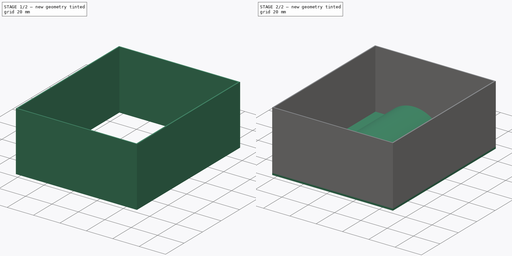
[diagram: build sequence overview — one tinted view per stage of 2, left to right]
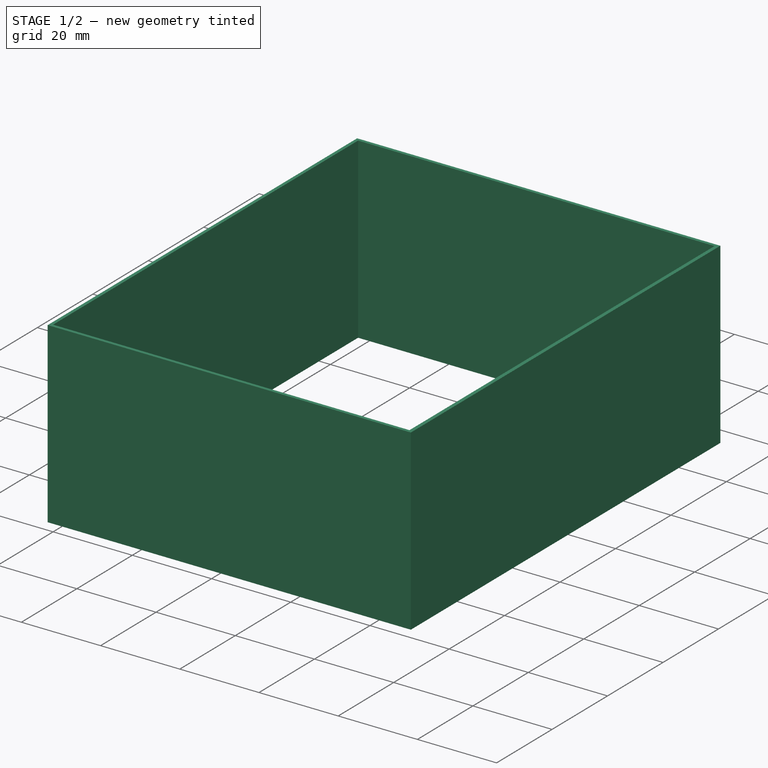
[diagram: stage 1 of 2 — iso view after this stage's code; geometry added in this stage tinted green]
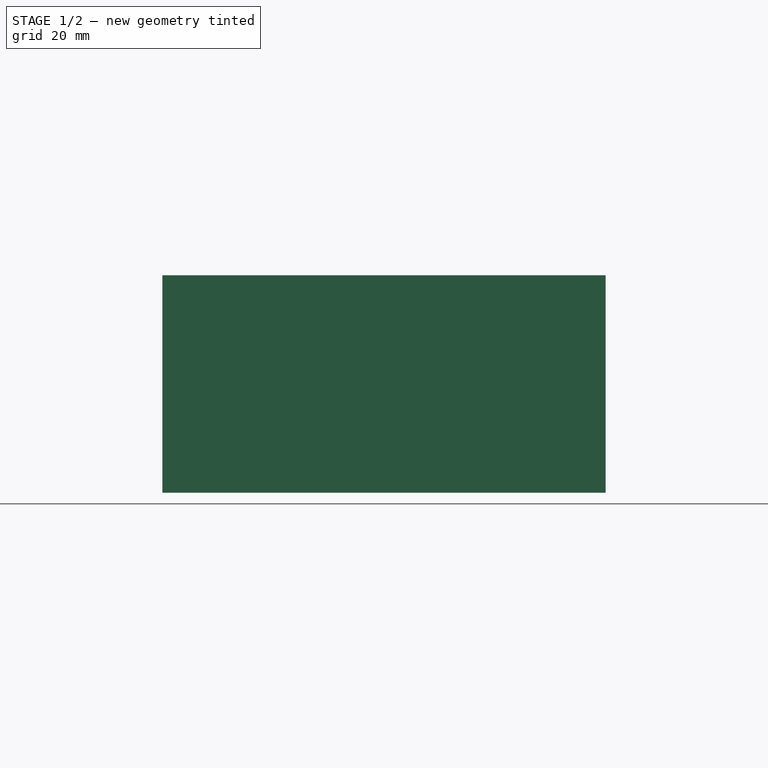
[diagram: stage 1 of 2 — front view after this stage's code; geometry added in this stage tinted green]
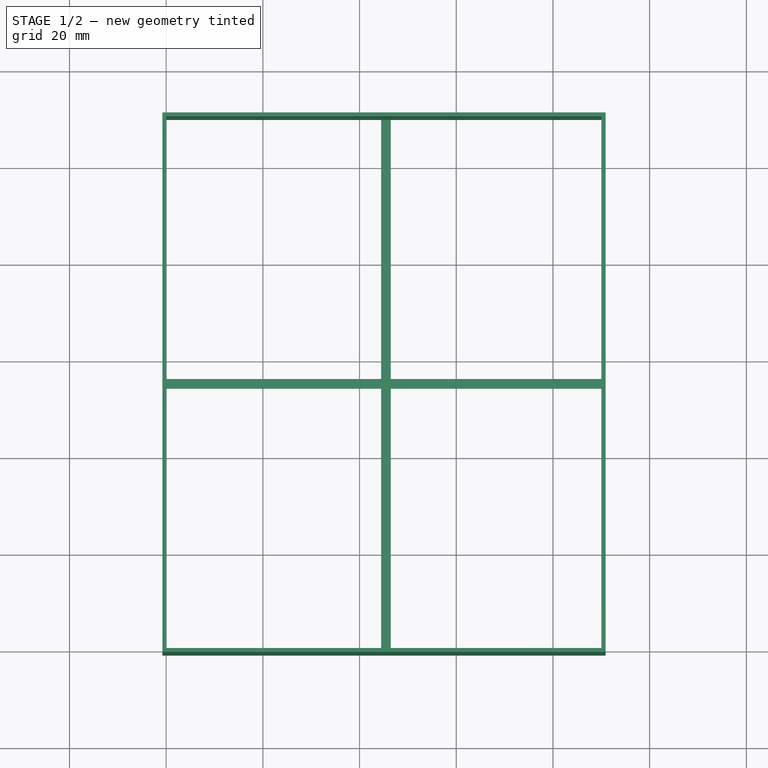
[diagram: stage 1 of 2 — top view after this stage's code; geometry added in this stage tinted green]
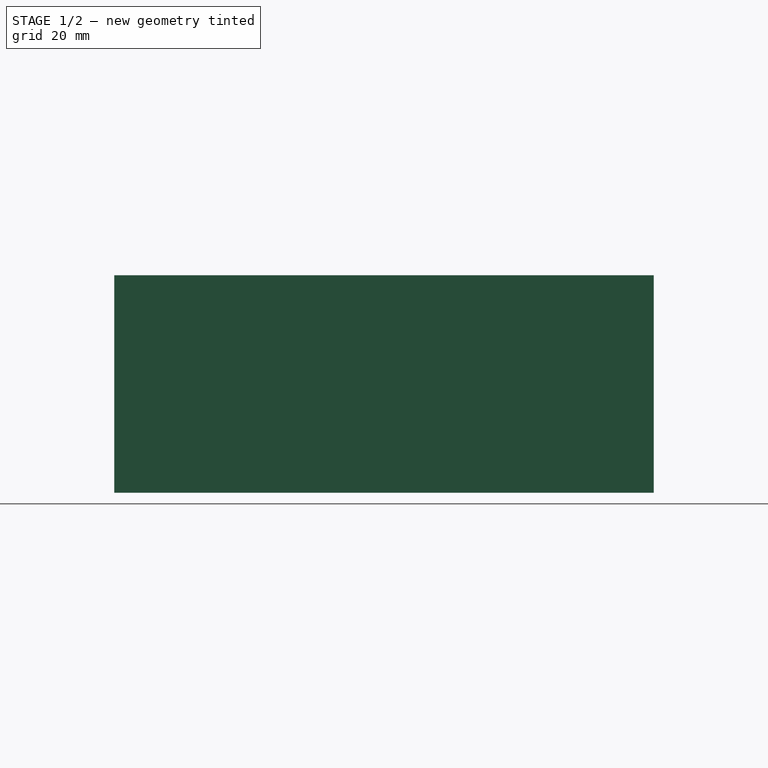
[diagram: stage 1 of 2 — right view after this stage's code; geometry added in this stage tinted green]
FCSTD DOCUMENT  (FreeCAD 0.22R38261 (Git))
Label: форма половинка
License: All rights reserved
LicenseURL: https://en.wikipedia.org/wiki/All_rights_reserved
objects: Sketcher::SketchObject×3, PartDesign::Pad×3, PartDesign::SubShapeBinder×1, PartDesign::Revolution×1, PartDesign::Body×1
note: 17 computed .brp shape members not serialized (recipe doc carries the construction recipe); baked Part::Feature solids carry a one-line shape summary decoded from their .brp

FEATURE [Sketcher::SketchObject] Sketch
  AttachmentSupport = -> [XY_Plane]
  FullyConstrained = true
  MapMode = 5
  sketch-geometry (8):
    g0: LineSegment StartX=0 StartY=110 StartZ=0 EndX=0 EndY=0 EndZ=0
    g1: LineSegment StartX=0 StartY=0 StartZ=0 EndX=90 EndY=0 EndZ=0
    g2: LineSegment StartX=90 StartY=0 StartZ=0 EndX=90 EndY=110 EndZ=0
    g3: LineSegment StartX=90 StartY=110 StartZ=0 EndX=0 EndY=110 EndZ=0
    g4: LineSegment StartX=-0.8 StartY=110.8 StartZ=0 EndX=-0.8 EndY=-0.8 EndZ=0
    g5: LineSegment StartX=-0.8 StartY=-0.8 StartZ=0 EndX=90.9 EndY=-0.8 EndZ=0
    g6: LineSegment StartX=90.9 StartY=-0.8 StartZ=0 EndX=90.9 EndY=110.8 EndZ=0
    g7: LineSegment StartX=90.9 StartY=110.8 StartZ=0 EndX=-0.8 EndY=110.8 EndZ=0
  constraints (23):
    c: Coincident(g0,g1)
    c: Coincident(g1,g2)
    c: Coincident(g2,g3)
    c: Coincident(g3,g0)
    c: Vertical(g0)
    c: Vertical(g2)
    c: Horizontal(g1)
    c: Horizontal(g3)
    c: DistanceX(g3,g3) = 90
    c: DistanceY(g0,g0) = 110
    c: Coincident(g0,g-1)
    c: Coincident(g4,g5)
    c: Coincident(g5,g6)
    c: Coincident(g6,g7)
    c: Coincident(g7,g4)
    c: Vertical(g4)
    c: Vertical(g6)
    c: Horizontal(g5)
    c: Horizontal(g7)
    c: DistanceX(g1,g5) = 0.9
    c: DistanceY(g5,g1) = 0.8
    c: DistanceX(g4,g0) = 0.8
    c: DistanceY(g0,g4) = 0.8
FEATURE [PartDesign::Pad] Pad
  Direction = (0,0,1)
  Length = 45
  Length2 = 10
  Profile = -> Sketch
  ReferenceAxis = -> Sketch [N_Axis]
  Suppressed = false
  Type = 0
FEATURE [Sketcher::SketchObject] Sketch001
  AttachmentSupport = -> [XY_Plane]
  ExternalGeometry = -> [Pad]
  FullyConstrained = false
  MapMode = 5
  sketch-geometry (6):
    g0: LineSegment StartX=45 StartY=87.5 StartZ=0 EndX=45 EndY=22.5 EndZ=0
    g1: LineSegment StartX=45 StartY=22.5 StartZ=0 EndX=69 EndY=22.5 EndZ=0
    g2: LineSegment StartX=69 StartY=22.5 StartZ=0 EndX=69 EndY=87.5 EndZ=0
    g3: LineSegment StartX=69 StartY=87.5 StartZ=0 EndX=45 EndY=87.5 EndZ=0
    g4: GeomPoint X=45 Y=55 Z=0
    g5: LineSegment StartX=45 StartY=122.08 StartZ=0 EndX=45 EndY=-38.8676 EndZ=0
  constraints (14):
    c: Coincident(g0,g1)
    c: Coincident(g1,g2)
    c: Coincident(g2,g3)
    c: Coincident(g3,g0)
    c: Vertical(g0)
    c: Vertical(g2)
    c: Horizontal(g1)
    c: Horizontal(g3)
    c: Symmetric(g-5,g-4,g4)
    c: Symmetric(g0,g0,g4)
    c: DistanceX(g1,g1) = 24
    c: DistanceY(g0,g0) = 65
    c: Vertical(g5)
    c: PointOnObject(g0,g5)
FEATURE [Sketcher::SketchObject] Sketch002
  AttachmentSupport = -> [XY_Plane]
  ExternalGeometry = -> [Pad]
  FullyConstrained = true
  MapMode = 5
  sketch-geometry (13):
    g0: LineSegment StartX=0 StartY=56.4 StartZ=0 EndX=0 EndY=54.4 EndZ=0
    g1: LineSegment StartX=0 StartY=54.4 StartZ=0 EndX=44.45 EndY=54.4 EndZ=0
    g2: LineSegment StartX=90.9 StartY=54.4 StartZ=0 EndX=90.9 EndY=56.4 EndZ=0
    g3: LineSegment StartX=90.9 StartY=56.4 StartZ=0 EndX=46.45 EndY=56.4 EndZ=0
    g4: LineSegment StartX=44.45 StartY=110.8 StartZ=0 EndX=44.45 EndY=56.4 EndZ=0
    g5: LineSegment StartX=44.45 StartY=0 StartZ=0 EndX=46.45 EndY=0 EndZ=0
    g6: LineSegment StartX=46.45 StartY=0 StartZ=0 EndX=46.45 EndY=54.4 EndZ=0
    g7: LineSegment StartX=46.45 StartY=110.8 StartZ=0 EndX=44.45 EndY=110.8 EndZ=0
    g8: GeomPoint X=45.45 Y=55.4 Z=0
    g9: LineSegment StartX=44.45 StartY=54.4 StartZ=0 EndX=44.45 EndY=0 EndZ=0
    g10: LineSegment StartX=46.45 StartY=56.4 StartZ=0 EndX=46.45 EndY=110.8 EndZ=0
    g11: LineSegment StartX=46.45 StartY=54.4 StartZ=0 EndX=90.9 EndY=54.4 EndZ=0
    g12: LineSegment StartX=44.45 StartY=56.4 StartZ=0 EndX=0 EndY=56.4 EndZ=0
  constraints (38):
    c: Coincident(g0,g1)
    c: Coincident(g11,g2)
    c: Coincident(g2,g3)
    c: Coincident(g12,g0)
    c: Vertical(g0)
    c: Vertical(g2)
    c: Horizontal(g1)
    c: Horizontal(g3)
    c: Coincident(g9,g5)
    c: Coincident(g5,g6)
    c: Coincident(g10,g7)
    c: Coincident(g7,g4)
    c: Vertical(g4)
    c: Vertical(g6)
    c: Horizontal(g5)
    c: Horizontal(g7)
    c: Symmetric(g0,g2,g8)
    c: Symmetric(g9,g10,g8)
    c: PointOnObject(g4,g12)
    c: PointOnObject(g6,g11)
    c: Coincident(g1,g9)
    c: PointOnObject(g11,g6)
    c: Coincident(g3,g10)
    c: PointOnObject(g12,g4)
    c: Horizontal(g11)
    c: Vertical(g10)
    c: Vertical(g9)
    c: Horizontal(g12)
    c: DistanceX(g5,g5) = 2
    c: DistanceY(g2,g2) = 2
    c: DistanceY(g0,g0) = 2
    c: DistanceX(g7,g7) = 2
    c: PointOnObject(g0,g-2)
    c: PointOnObject(g5,g-1)
    c: Horizontal(g6,g1)
    c: Vertical(g4,g1)
    c: Horizontal(g7,g-4)
    c: Vertical(g2,g-4)
FEATURE [PartDesign::SubShapeBinder] Binder
  BindCopyOnChange = 0
  BindMode = 0
  ClaimChildren = false
  Context = -> Body [Binder.]
  Fuse = false
  MakeFace = true
  OffsetFill = false
  OffsetIntersection = false
  OffsetJoinType = 0
  OffsetOpenResult = false
  PartialLoad = false
  Relative = true
  Support = -> [Pad[Edge6,Edge9,Edge11,Edge3]]
  _Version = 2
FEATURE [PartDesign::Pad] Pad002
  BaseFeature = -> Pad
  Direction = (0,0,1)
  Length = 2
  Length2 = 10
  Profile = -> Sketch002
  ReferenceAxis = -> Sketch002 [N_Axis]
  Suppressed = false
  Type = 0
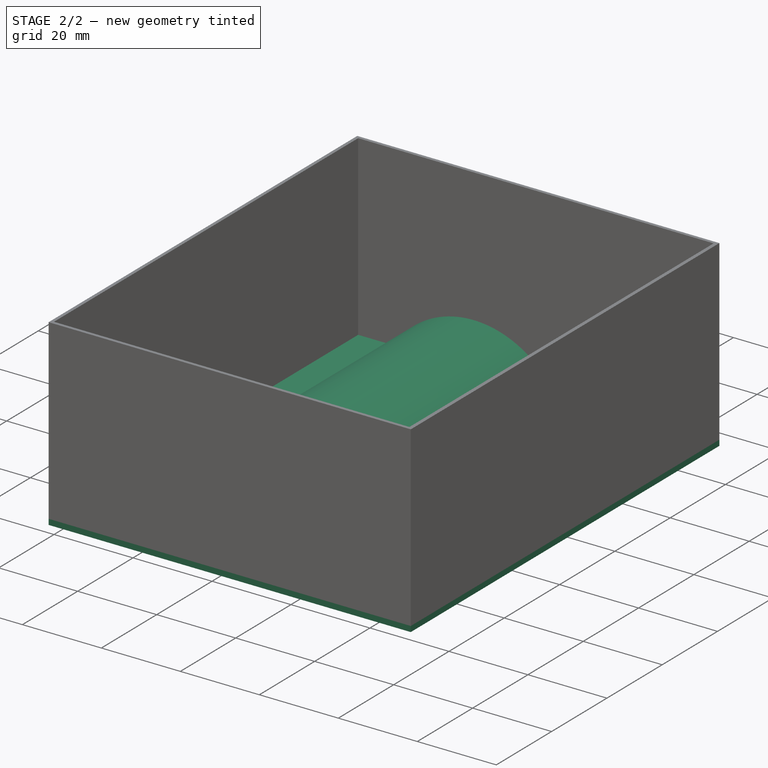
[diagram: stage 2 of 2 — iso view after this stage's code; geometry added in this stage tinted green]
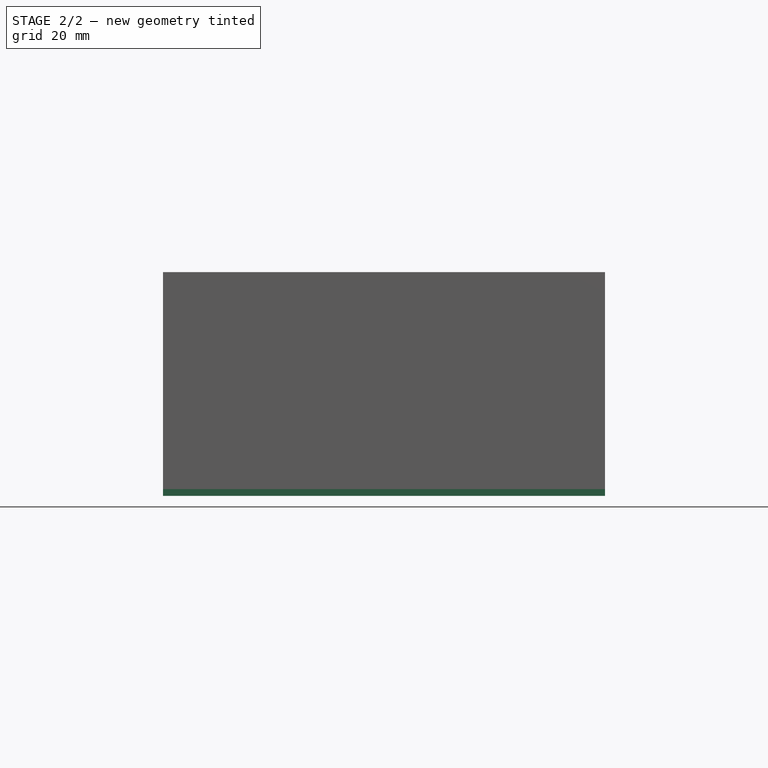
[diagram: stage 2 of 2 — front view after this stage's code; geometry added in this stage tinted green]
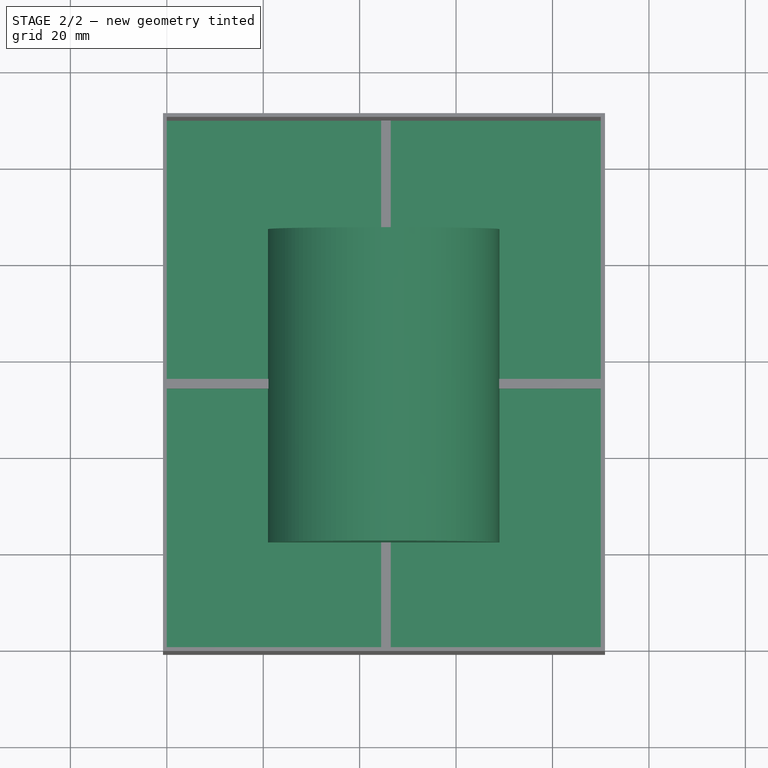
[diagram: stage 2 of 2 — top view after this stage's code; geometry added in this stage tinted green]
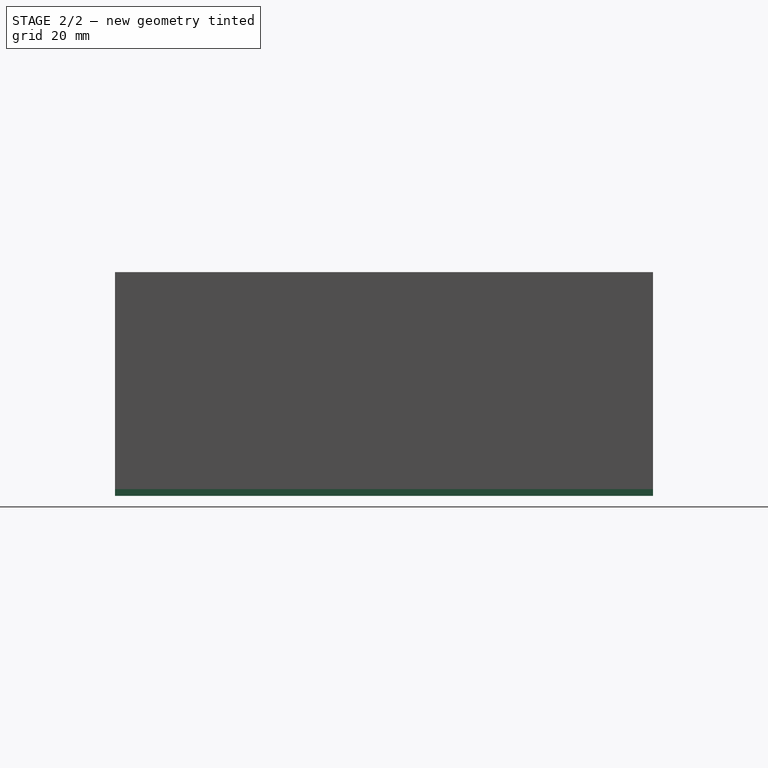
[diagram: stage 2 of 2 — right view after this stage's code; geometry added in this stage tinted green]
FEATURE [PartDesign::Revolution] Revolution
  Angle = 180
  Angle2 = 60
  Axis = (0,-160.948,0)
  Base = (45,122.08,0)
  BaseFeature = -> Pad002
  Profile = -> Sketch001
  ReferenceAxis = -> Sketch001 [Axis]
  Suppressed = false
  Type = 0
FEATURE [PartDesign::Pad] Pad001
  BaseFeature = -> Revolution
  Direction = (0,0,1)
  Length = 1.4
  Length2 = 10
  Profile = -> Binder
  Reversed = true
  Suppressed = false
  Type = 0
FEATURE [PartDesign::Body] Body  label="Тело"
  AllowCompound = false
  Group = -> [Sketch,Pad,Pad002,Sketch001,Revolution,Sketch002,Binder,Pad001]
  Origin = -> Origin
  Tip = -> Pad001
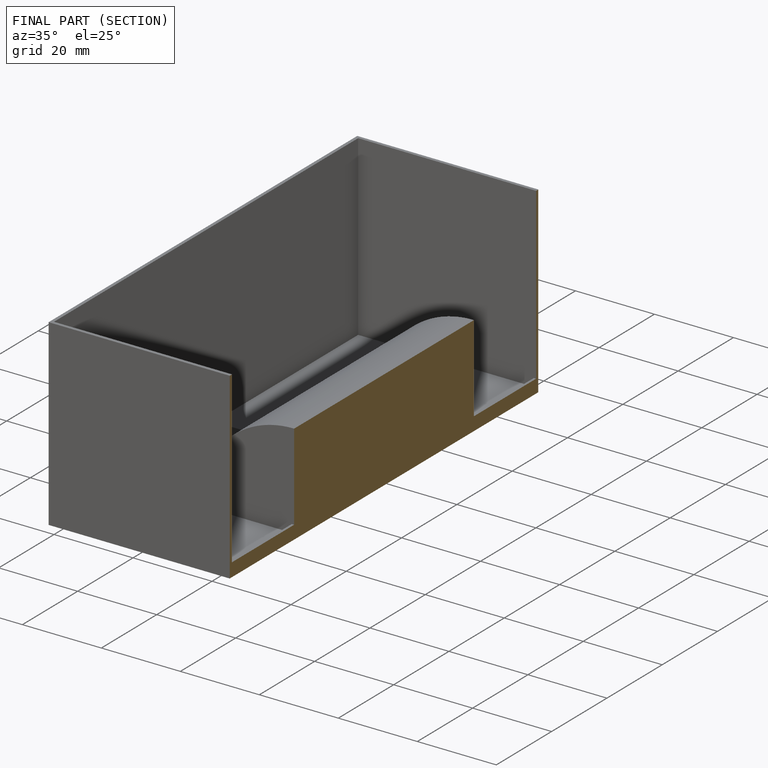
[diagram: finished part — half-section view (interior)]
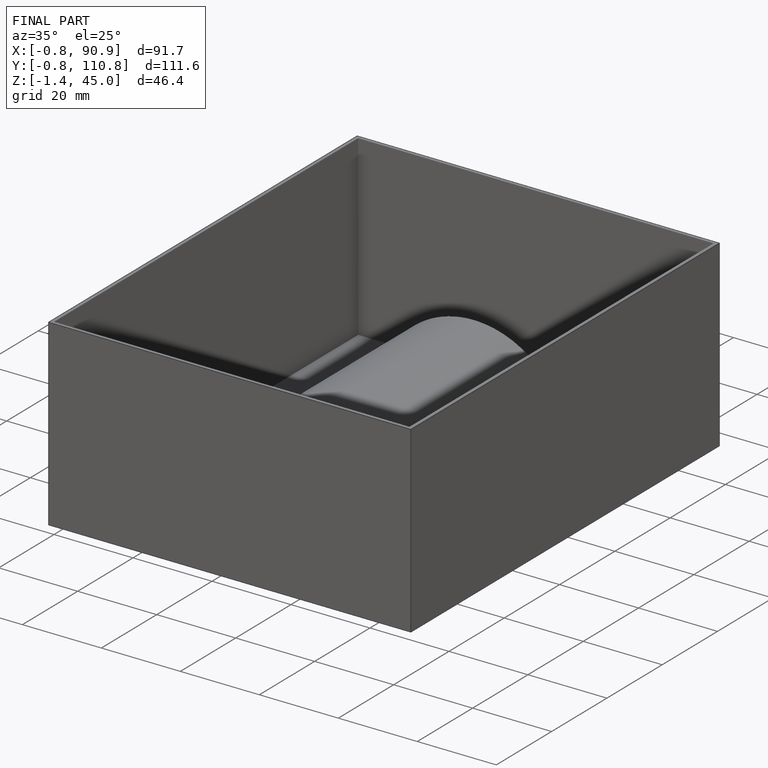
[diagram: finished part — iso view with bounding-box wireframe]
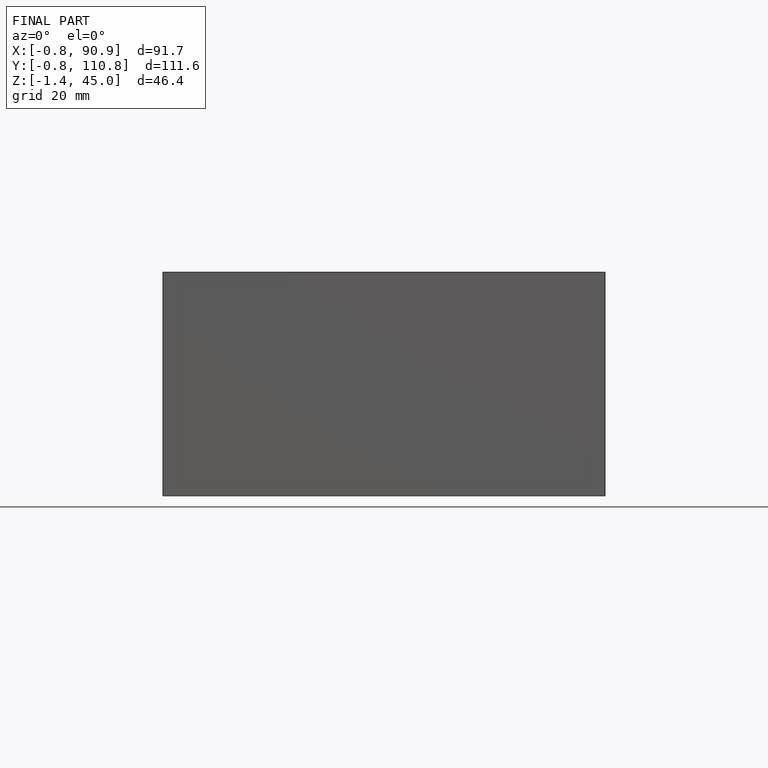
[diagram: finished part — front view with bounding-box wireframe]
